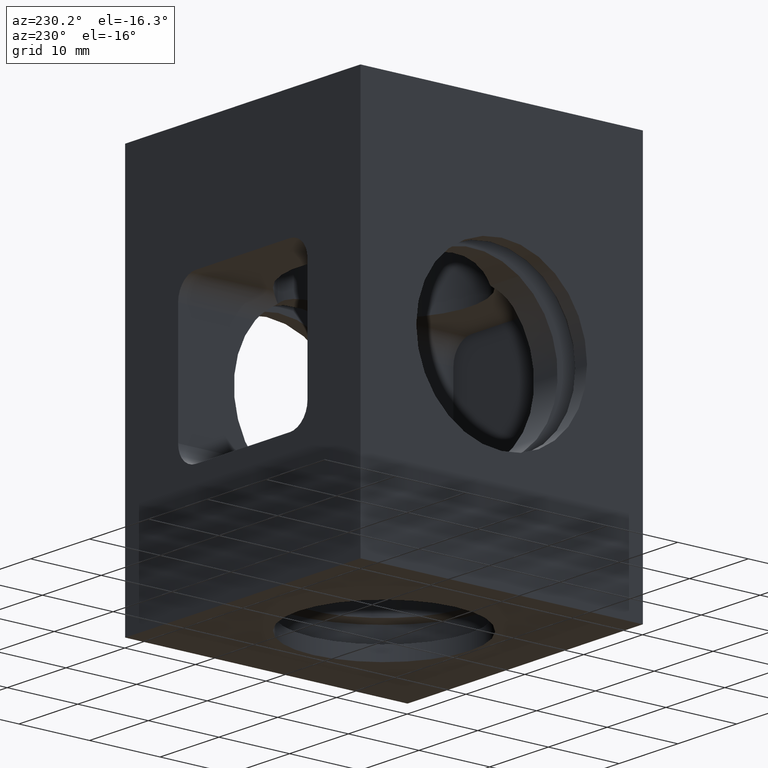
[diagram: clean part render]
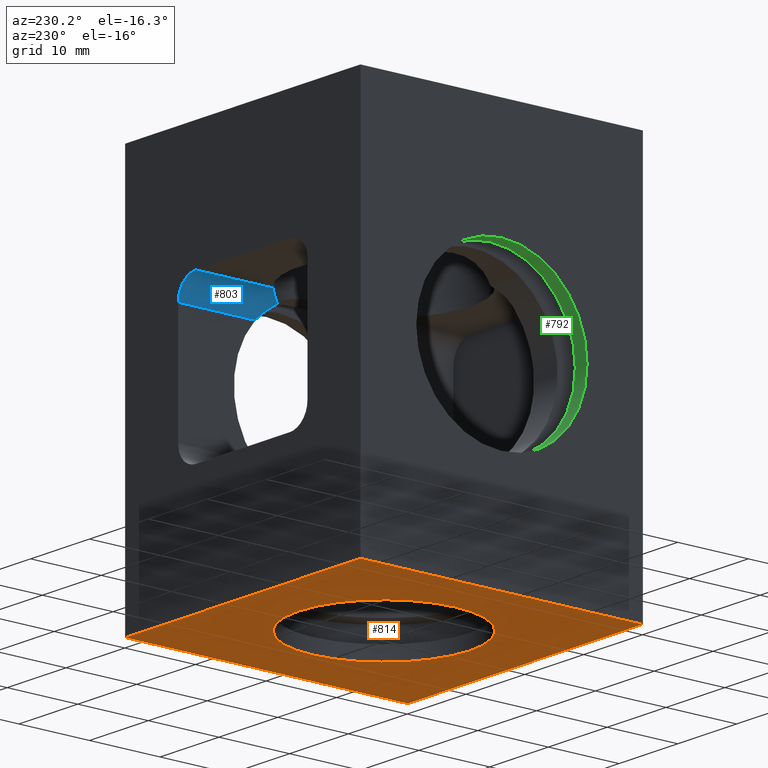
[diagram: same view with three faces highlighted in distinct colors, each labeled with its STEP entity id]
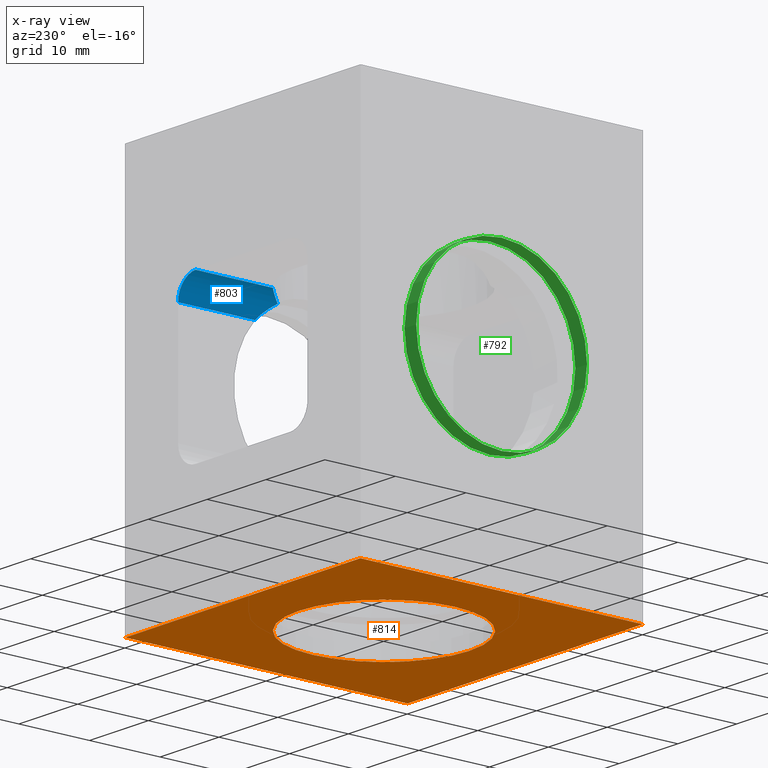
[diagram: x-ray of the same camera — body ghosted, the three highlighted faces saturated]
A machine part, auxiliary view with three faces highlighted in distinct colors.
The next image is the same camera in x-ray (body ghosted, the three faces saturated) — at least one of them is partly hidden behind the body in this view.
Their STEP definitions:

[orange] entity #814 — the highlighted planar face has unit normal (-0, 0, -1).
#113=FACE_BOUND('',#290,.T.);
#143=CIRCLE('',#875,12.1);
#208=FACE_OUTER_BOUND('',#289,.T.);
#289=EDGE_LOOP('',(#728,#729,#730,#731));
#290=EDGE_LOOP('',(#732));
#297=LINE('',#1168,#333);
#313=LINE('',#1274,#349);
#328=LINE('',#1462,#364);
#329=LINE('',#1464,#365);
#333=VECTOR('',#930,10.);
#349=VECTOR('',#1010,10.);
#364=VECTOR('',#1151,10.);
#365=VECTOR('',#1154,10.);
#369=VERTEX_POINT('',#1165);
#370=VERTEX_POINT('',#1167);
#403=VERTEX_POINT('',#1271);
#404=VERTEX_POINT('',#1273);
#415=VERTEX_POINT('',#1304);
#445=EDGE_CURVE('',#369,#370,#297,.T.);
#483=EDGE_CURVE('',#403,#404,#313,.T.);
#495=EDGE_CURVE('',#415,#415,#143,.T.);
#540=EDGE_CURVE('',#403,#370,#328,.T.);
#541=EDGE_CURVE('',#404,#369,#329,.T.);
#728=ORIENTED_EDGE('',*,*,#483,.F.);
#729=ORIENTED_EDGE('',*,*,#540,.T.);
#730=ORIENTED_EDGE('',*,*,#445,.F.);
#731=ORIENTED_EDGE('',*,*,#541,.F.);
#732=ORIENTED_EDGE('',*,*,#495,.T.);
#763=PLANE('',#921);
#814=ADVANCED_FACE('',(#208,#113),#763,.T.);
#875=AXIS2_PLACEMENT_3D('',#1305,#1047,#1048);
#921=AXIS2_PLACEMENT_3D('',#1463,#1152,#1153);
#930=DIRECTION('',(-1.,0.,4.44089209850063E-16));
#1010=DIRECTION('',(1.,0.,-4.44089209850063E-16));
#1047=DIRECTION('center_axis',(4.44089209850063E-16,0.,1.));
#1048=DIRECTION('ref_axis',(1.,0.,-4.53152254949043E-16));
#1151=DIRECTION('',(0.,1.,0.));
#1152=DIRECTION('center_axis',(-4.44089209850063E-16,0.,-1.));
#1153=DIRECTION('ref_axis',(-1.,0.,3.5527136788005E-16));
#1154=DIRECTION('',(0.,1.,0.));
#1165=CARTESIAN_POINT('',(20.,49.95,-28.));
#1167=CARTESIAN_POINT('',(-20.,49.95,-28.));
#1168=CARTESIAN_POINT('',(20.,49.95,-28.));
#1271=CARTESIAN_POINT('',(-20.,9.95,-28.));
#1273=CARTESIAN_POINT('',(20.,9.95,-28.));
#1274=CARTESIAN_POINT('',(9.99999999999999,9.95,-28.));
#1304=CARTESIAN_POINT('',(-12.1,29.95,-28.));
#1305=CARTESIAN_POINT('Origin',(-8.88178419700125E-15,29.95,-28.));
#1462=CARTESIAN_POINT('',(-20.,9.95,-28.));
#1463=CARTESIAN_POINT('Origin',(20.,9.95,-28.));
#1464=CARTESIAN_POINT('',(20.,9.95,-28.));

[blue] entity #803 — the highlighted cylindrical surface (edge-blend (fillet) strip) has radius 3 mm, axis along (0, 1, 0).
#22=B_SPLINE_CURVE_WITH_KNOTS('',3,(#1339,#1340,#1341,#1342,#1343,#1344),
 .UNSPECIFIED.,.F.,.F.,(4,2,4),(1.40247893312734,1.54354870147733,1.72483884788488),
 .UNSPECIFIED.);
#32=B_SPLINE_CURVE_WITH_KNOTS('',3,(#1427,#1428,#1429,#1430,#1431,#1432),
 .UNSPECIFIED.,.F.,.F.,(4,2,4),(0.501109366172013,0.682399512579562,0.823469280937512),
 .UNSPECIFIED.);
#74=CYLINDRICAL_SURFACE('',#910,3.);
#117=CIRCLE('',#827,3.);
#197=FACE_OUTER_BOUND('',#277,.T.);
#277=EDGE_LOOP('',(#678,#679,#680,#681,#682));
#318=LINE('',#1442,#354);
#319=LINE('',#1443,#355);
#354=VECTOR('',#1121,10.);
#355=VECTOR('',#1122,10.);
#374=VERTEX_POINT('',#1175);
#375=VERTEX_POINT('',#1177);
#426=VERTEX_POINT('',#1335);
#428=VERTEX_POINT('',#1338);
#441=VERTEX_POINT('',#1426);
#450=EDGE_CURVE('',#374,#375,#117,.T.);
#507=EDGE_CURVE('',#428,#426,#22,.T.);
#527=EDGE_CURVE('',#441,#428,#32,.T.);
#530=EDGE_CURVE('',#426,#375,#318,.T.);
#531=EDGE_CURVE('',#441,#374,#319,.T.);
#678=ORIENTED_EDGE('',*,*,#507,.T.);
#679=ORIENTED_EDGE('',*,*,#530,.T.);
#680=ORIENTED_EDGE('',*,*,#450,.F.);
#681=ORIENTED_EDGE('',*,*,#531,.F.);
#682=ORIENTED_EDGE('',*,*,#527,.T.);
#803=ADVANCED_FACE('',(#197),#74,.F.);
#827=AXIS2_PLACEMENT_3D('',#1178,#936,#937);
#910=AXIS2_PLACEMENT_3D('',#1441,#1119,#1120);
#936=DIRECTION('center_axis',(0.,-1.,0.));
#937=DIRECTION('ref_axis',(0.,0.,-1.));
#1119=DIRECTION('center_axis',(0.,1.,0.));
#1120=DIRECTION('ref_axis',(0.,0.,-1.));
#1121=DIRECTION('',(0.,1.,0.));
#1122=DIRECTION('',(0.,1.,0.));
#1175=CARTESIAN_POINT('',(11.,49.95,8.));
#1177=CARTESIAN_POINT('',(8.,49.95,11.));
#1178=CARTESIAN_POINT('Origin',(8.,49.95,8.));
#1335=CARTESIAN_POINT('',(8.,39.0279953734291,11.));
#1338=CARTESIAN_POINT('',(10.1213203435468,36.5809029929898,10.1213203436023));
#1339=CARTESIAN_POINT('Ctrl Pts',(10.1213203435629,36.5809029930304,10.1213203435564));
#1340=CARTESIAN_POINT('Ctrl Pts',(9.88826307991011,36.9366384375549,10.3543776072099));
#1341=CARTESIAN_POINT('Ctrl Pts',(9.61145401397962,37.3163703744474,10.5535987971301));
#1342=CARTESIAN_POINT('Ctrl Pts',(8.90538078693964,38.1652151510608,10.8938873687434));
#1343=CARTESIAN_POINT('Ctrl Pts',(8.45337496152508,38.6284578606852,11.));
#1344=CARTESIAN_POINT('Ctrl Pts',(8.00000000000001,39.0279953734291,11.));
#1426=CARTESIAN_POINT('',(11.,39.0279953734291,8.));
#1427=CARTESIAN_POINT('Ctrl Pts',(11.,39.0279953734291,8.));
#1428=CARTESIAN_POINT('Ctrl Pts',(11.,38.6284578606852,8.45337496152507));
#1429=CARTESIAN_POINT('Ctrl Pts',(10.8938873687434,38.1652151510608,8.90538078693964));
#1430=CARTESIAN_POINT('Ctrl Pts',(10.5535987971217,37.3163703744264,9.61145401399705));
#1431=CARTESIAN_POINT('Ctrl Pts',(10.3543776071874,36.9366384375119,9.88826307994124));
#1432=CARTESIAN_POINT('Ctrl Pts',(10.1213203435169,36.5809029929702,10.1213203436023));
#1441=CARTESIAN_POINT('Origin',(8.,9.95,8.));
#1442=CARTESIAN_POINT('',(8.,46.95,11.));
#1443=CARTESIAN_POINT('',(11.,46.95,8.));

[green] entity #792 — the highlighted cylindrical surface (bore or boss wall) has radius 12.1 mm, axis along (-1, 0, 0).
#66=CYLINDRICAL_SURFACE('',#883,12.1);
#103=FACE_BOUND('',#258,.T.);
#147=CIRCLE('',#882,12.1);
#148=CIRCLE('',#884,12.1);
#186=FACE_OUTER_BOUND('',#257,.T.);
#257=EDGE_LOOP('',(#623));
#258=EDGE_LOOP('',(#624));
#419=VERTEX_POINT('',#1315);
#420=VERTEX_POINT('',#1318);
#499=EDGE_CURVE('',#419,#419,#147,.T.);
#500=EDGE_CURVE('',#420,#420,#148,.T.);
#623=ORIENTED_EDGE('',*,*,#500,.F.);
#624=ORIENTED_EDGE('',*,*,#499,.T.);
#792=ADVANCED_FACE('',(#186,#103),#66,.F.);
#882=AXIS2_PLACEMENT_3D('',#1316,#1061,#1062);
#883=AXIS2_PLACEMENT_3D('',#1317,#1063,#1064);
#884=AXIS2_PLACEMENT_3D('',#1319,#1065,#1066);
#1061=DIRECTION('center_axis',(1.,0.,0.));
#1062=DIRECTION('ref_axis',(0.,0.,1.));
#1063=DIRECTION('center_axis',(-1.,0.,0.));
#1064=DIRECTION('ref_axis',(0.,0.,1.));
#1065=DIRECTION('center_axis',(1.,0.,1.18952466924124E-16));
#1066=DIRECTION('ref_axis',(0.,0.,1.));
#1315=CARTESIAN_POINT('',(-18.,29.95,-12.1));
#1316=CARTESIAN_POINT('Origin',(-18.,29.95,0.));
#1317=CARTESIAN_POINT('Origin',(20.,29.95,0.));
#1318=CARTESIAN_POINT('',(-20.,29.95,-12.1));
#1319=CARTESIAN_POINT('Origin',(-20.,29.95,0.));